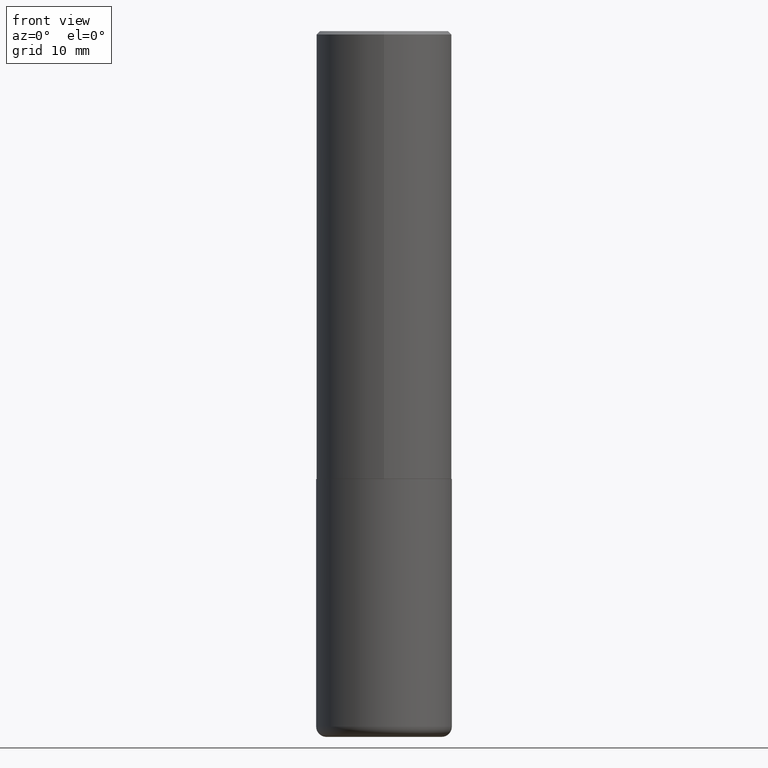
[diagram: clean part render]
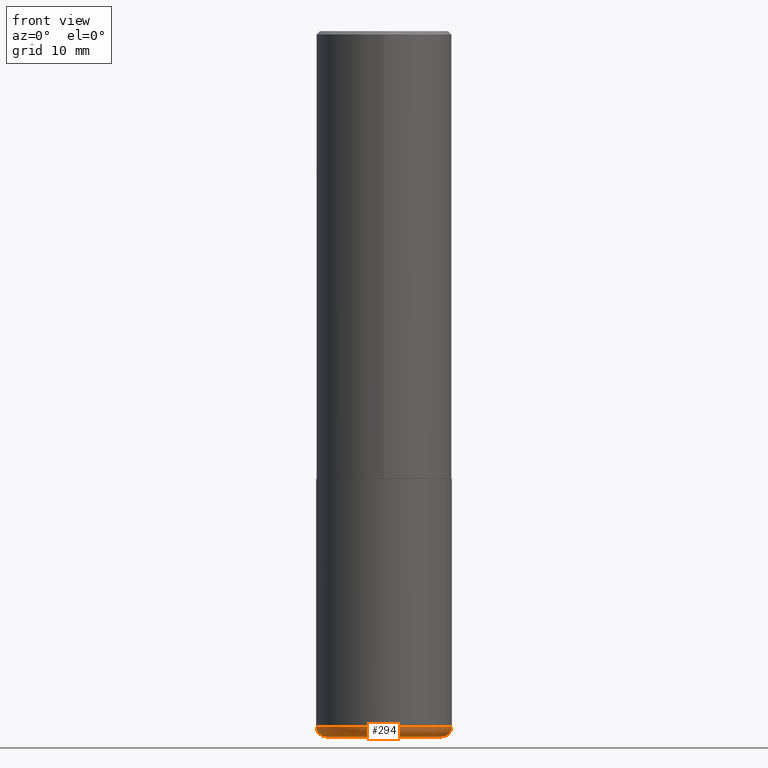
[diagram: same view with one face highlighted and labeled with its STEP entity id]
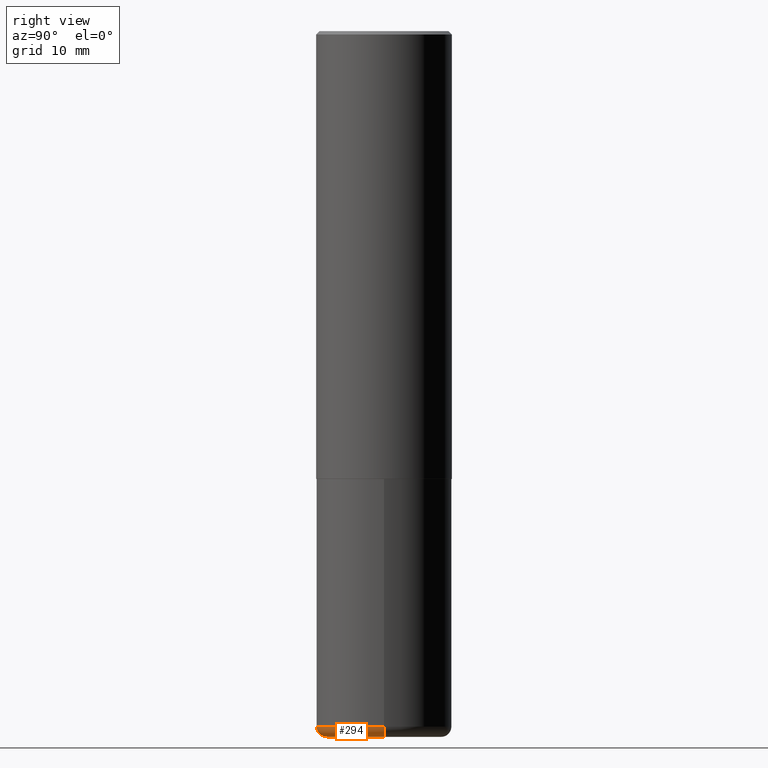
[diagram: same view with one face highlighted and labeled with its STEP entity id]
A machine part, front view. The second image highlights one B-rep face of the part: STEP entity #294.
A second angle (right view) of the same face is appended — the face is thin or edge-on in the first view.
In plain terms, the highlighted toroidal blend (fillet) surface has major radius 8.4811 mm and minor (blend) radius 1.5189 mm.
Its self-contained STEP definition (entity closure, byte-faithful):
#4 = DIRECTION ( 'NONE',  ( -6.982962677686266711E-15, -1.000000000000000000, 3.491481338843145583E-15 ) ) ;
#19 = DIRECTION ( 'NONE',  ( -2.445468806185136597E-29, 3.491481338843145583E-15, 1.000000000000000000 ) ) ;
#32 = CARTESIAN_POINT ( 'NONE',  ( 9.866732992315171563E-29, -1.408707975783044020E-14, -4.034700000000000841 ) ) ;
#41 = EDGE_CURVE ( 'NONE', #215, #200, #395, .T. ) ;
#50 = CARTESIAN_POINT ( 'NONE',  ( 0.3937000000000001054, -1.683627216403552499E-14, -4.034700000000000841 ) ) ;
#58 = CARTESIAN_POINT ( 'NONE',  ( 1.001297202692504327E-28, -1.429587034189326465E-14, -4.094500000000000917 ) ) ;
#66 = FACE_OUTER_BOUND ( 'NONE', #71, .T. ) ;
#71 = EDGE_LOOP ( 'NONE', ( #403, #146, #307, #301 ) ) ;
#85 = VERTEX_POINT ( 'NONE', #373 ) ;
#93 = DIRECTION ( 'NONE',  ( 1.000000000000000000, -6.982962677686266711E-15, 0.000000000000000000 ) ) ;
#118 = CIRCLE ( 'NONE', #404, 0.05980000000000013777 ) ;
#120 = EDGE_CURVE ( 'NONE', #285, #215, #248, .T. ) ;
#123 = CIRCLE ( 'NONE', #213, 0.3339000000000000301 ) ;
#137 = DIRECTION ( 'NONE',  ( 1.000000000000000000, -6.982962677686267499E-15, 0.000000000000000000 ) ) ;
#139 = CARTESIAN_POINT ( 'NONE',  ( -0.3937000000000001054, -1.128967300714292462E-14, -4.034700000000000841 ) ) ;
#146 = ORIENTED_EDGE ( 'NONE', *, *, #311, .T. ) ;
#153 = DIRECTION ( 'NONE',  ( -2.445468806185136597E-29, 3.491481338843145583E-15, 1.000000000000000000 ) ) ;
#175 = EDGE_CURVE ( 'NONE', #85, #200, #118, .T. ) ;
#178 = AXIS2_PLACEMENT_3D ( 'NONE', #32, #153, #279 ) ;
#200 = VERTEX_POINT ( 'NONE', #50 ) ;
#202 = TOROIDAL_SURFACE ( 'NONE', #178, 0.3339000000000000301, 0.05980000000000013777 ) ;
#207 = CARTESIAN_POINT ( 'NONE',  ( 9.866732992315171563E-29, -1.408707975783044020E-14, -4.034700000000000841 ) ) ;
#212 = AXIS2_PLACEMENT_3D ( 'NONE', #207, #19, #137 ) ;
#213 = AXIS2_PLACEMENT_3D ( 'NONE', #58, #379, #93 ) ;
#215 = VERTEX_POINT ( 'NONE', #139 ) ;
#248 = CIRCLE ( 'NONE', #257, 0.05980000000000013777 ) ;
#257 = AXIS2_PLACEMENT_3D ( 'NONE', #381, #416, #315 ) ;
#279 = DIRECTION ( 'NONE',  ( 1.000000000000000000, -6.982962677686265922E-15, 4.883557194083112340E-29 ) ) ;
#280 = CARTESIAN_POINT ( 'NONE',  ( -0.3339000000000000301, -1.160652057716660628E-14, -4.094500000000000917 ) ) ;
#285 = VERTEX_POINT ( 'NONE', #280 ) ;
#294 = ADVANCED_FACE ( 'NONE', ( #66 ), #202, .T. ) ;
#301 = ORIENTED_EDGE ( 'NONE', *, *, #41, .F. ) ;
#307 = ORIENTED_EDGE ( 'NONE', *, *, #175, .T. ) ;
#311 = EDGE_CURVE ( 'NONE', #285, #85, #123, .T. ) ;
#315 = DIRECTION ( 'NONE',  ( -1.000000000000000000, 7.105427357601017636E-15, 0.000000000000000000 ) ) ;
#332 = DIRECTION ( 'NONE',  ( 1.000000000000000000, -6.982962677686261189E-15, 0.000000000000000000 ) ) ;
#373 = CARTESIAN_POINT ( 'NONE',  ( 0.3339000000000000301, -1.662748157997270843E-14, -4.094500000000000917 ) ) ;
#379 = DIRECTION ( 'NONE',  ( -2.445468806185136597E-29, 3.491481338843145583E-15, 1.000000000000000000 ) ) ;
#381 = CARTESIAN_POINT ( 'NONE',  ( -0.3339000000000000301, -1.171457756312746665E-14, -4.034700000000000841 ) ) ;
#393 = CARTESIAN_POINT ( 'NONE',  ( 0.3339000000000000301, -1.641869099590988556E-14, -4.034700000000000841 ) ) ;
#395 = CIRCLE ( 'NONE', #212, 0.3937000000000000499 ) ;
#403 = ORIENTED_EDGE ( 'NONE', *, *, #120, .F. ) ;
#404 = AXIS2_PLACEMENT_3D ( 'NONE', #393, #4, #332 ) ;
#416 = DIRECTION ( 'NONE',  ( 7.105427357601001859E-15, 1.000000000000000000, -3.491481338843145583E-15 ) ) ;